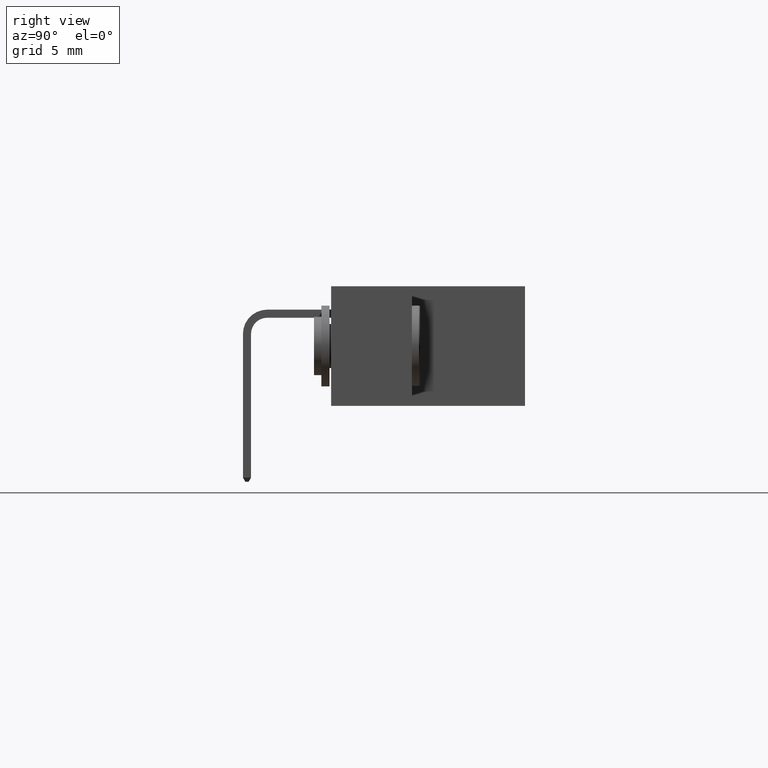
[diagram: clean part render]
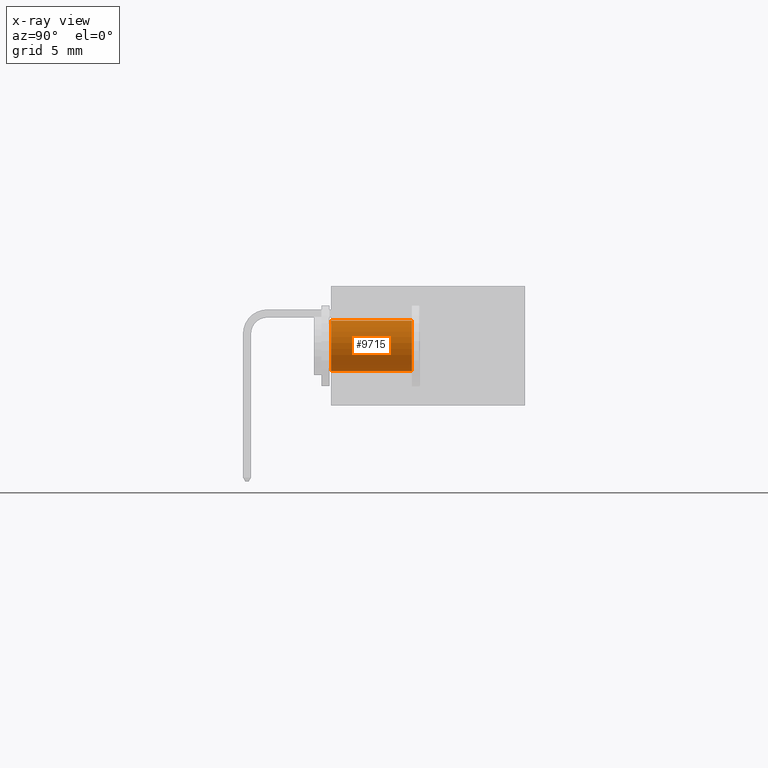
[diagram: x-ray — body ghosted, one internal face saturated and labeled with its STEP entity id]
A machine part, right view, then the same camera in x-ray: the body is ghosted and one INTERNAL B-rep face — a face not visible from any outside direction — is saturated and labeled: STEP entity #9715.
In plain terms, the highlighted cylindrical surface (edge-blend (fillet) strip) has radius 1.9812 mm, axis along (0, 1, 0).
Its self-contained STEP definition (entity closure, byte-faithful):
#329 = VERTEX_POINT ( 'NONE', #4282 ) ;
#1075 = AXIS2_PLACEMENT_3D ( 'NONE', #9224, #1161, #1226 ) ;
#1077 = LINE ( 'NONE', #2439, #1196 ) ;
#1128 = EDGE_CURVE ( 'NONE', #5806, #329, #3229, .T. ) ;
#1161 = DIRECTION ( 'NONE',  ( -0.0000000000000000000, 1.000000000000000000, -0.0000000000000000000 ) ) ;
#1196 = VECTOR ( 'NONE', #3958, 39.37007874015748100 ) ;
#1201 = EDGE_LOOP ( 'NONE', ( #8431, #6772, #7457, #1683 ) ) ;
#1226 = DIRECTION ( 'NONE',  ( 0.0000000000000000000, 0.0000000000000000000, 1.000000000000000000 ) ) ;
#1683 = ORIENTED_EDGE ( 'NONE', *, *, #1128, .T. ) ;
#1794 = DIRECTION ( 'NONE',  ( 0.0000000000000000000, 1.000000000000000000, 0.0000000000000000000 ) ) ;
#2216 = CARTESIAN_POINT ( 'NONE',  ( 0.1550000000000001100, 0.2500000000000000000, -0.1850000000000000000 ) ) ;
#2439 = CARTESIAN_POINT ( 'NONE',  ( 0.1550000000000001100, 0.0000000000000000000, -0.1070000000000000100 ) ) ;
#2717 = LINE ( 'NONE', #9128, #4075 ) ;
#3229 = CIRCLE ( 'NONE', #6382, 0.07800000000000000000 ) ;
#3365 = AXIS2_PLACEMENT_3D ( 'NONE', #6386, #1794, #5784 ) ;
#3954 = FACE_OUTER_BOUND ( 'NONE', #1201, .T. ) ;
#3958 = DIRECTION ( 'NONE',  ( -0.0000000000000000000, 1.000000000000000000, -0.0000000000000000000 ) ) ;
#4075 = VECTOR ( 'NONE', #7448, 39.37007874015748100 ) ;
#4282 = CARTESIAN_POINT ( 'NONE',  ( 0.1550000000000001100, 0.2500000000000000000, -0.2630000000000000100 ) ) ;
#4543 = DIRECTION ( 'NONE',  ( 0.0000000000000000000, 0.0000000000000000000, 1.000000000000000000 ) ) ;
#5720 = EDGE_CURVE ( 'NONE', #6329, #329, #2717, .T. ) ;
#5784 = DIRECTION ( 'NONE',  ( 0.0000000000000000000, 0.0000000000000000000, 1.000000000000000000 ) ) ;
#5806 = VERTEX_POINT ( 'NONE', #7675 ) ;
#6329 = VERTEX_POINT ( 'NONE', #9898 ) ;
#6382 = AXIS2_PLACEMENT_3D ( 'NONE', #2216, #9402, #4543 ) ;
#6386 = CARTESIAN_POINT ( 'NONE',  ( 0.1550000000000001100, 0.0000000000000000000, -0.1850000000000000000 ) ) ;
#6772 = ORIENTED_EDGE ( 'NONE', *, *, #9859, .F. ) ;
#7448 = DIRECTION ( 'NONE',  ( -0.0000000000000000000, 1.000000000000000000, -0.0000000000000000000 ) ) ;
#7457 = ORIENTED_EDGE ( 'NONE', *, *, #10337, .T. ) ;
#7675 = CARTESIAN_POINT ( 'NONE',  ( 0.1550000000000001100, 0.2500000000000000000, -0.1070000000000000100 ) ) ;
#8431 = ORIENTED_EDGE ( 'NONE', *, *, #5720, .F. ) ;
#9079 = CIRCLE ( 'NONE', #3365, 0.07800000000000000000 ) ;
#9128 = CARTESIAN_POINT ( 'NONE',  ( 0.1550000000000001100, 0.0000000000000000000, -0.2630000000000000100 ) ) ;
#9224 = CARTESIAN_POINT ( 'NONE',  ( 0.1550000000000001100, 0.0000000000000000000, -0.1850000000000000000 ) ) ;
#9402 = DIRECTION ( 'NONE',  ( 0.0000000000000000000, 1.000000000000000000, 0.0000000000000000000 ) ) ;
#9715 = ADVANCED_FACE ( 'NONE', ( #3954 ), #10166, .F. ) ;
#9752 = VERTEX_POINT ( 'NONE', #10313 ) ;
#9859 = EDGE_CURVE ( 'NONE', #9752, #6329, #9079, .T. ) ;
#9898 = CARTESIAN_POINT ( 'NONE',  ( 0.1550000000000001100, 0.0000000000000000000, -0.2630000000000000100 ) ) ;
#10166 = CYLINDRICAL_SURFACE ( 'NONE', #1075, 0.07800000000000000000 ) ;
#10313 = CARTESIAN_POINT ( 'NONE',  ( 0.1550000000000001100, 0.0000000000000000000, -0.1070000000000000100 ) ) ;
#10337 = EDGE_CURVE ( 'NONE', #9752, #5806, #1077, .T. ) ;